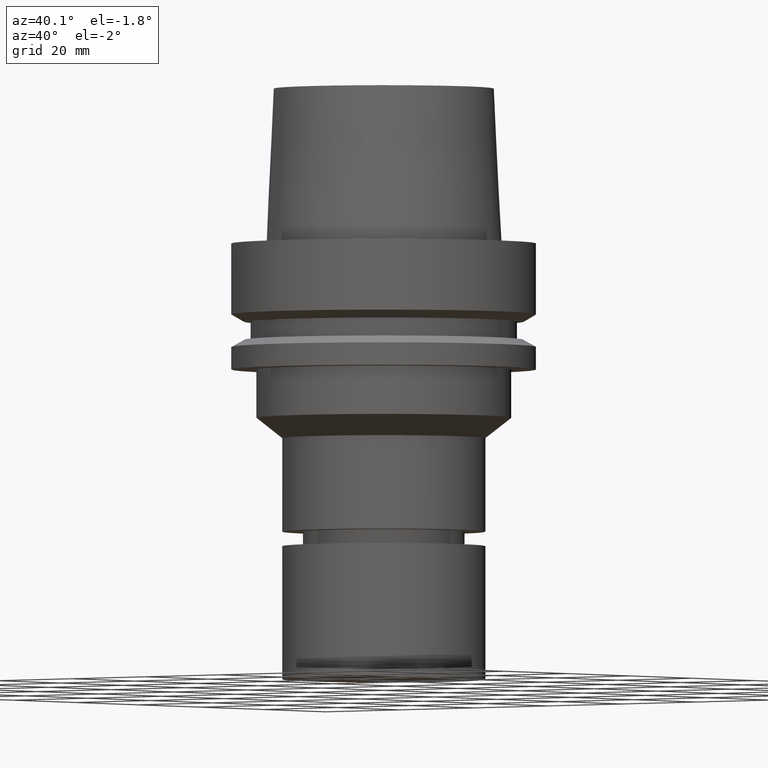
[diagram: clean part render]
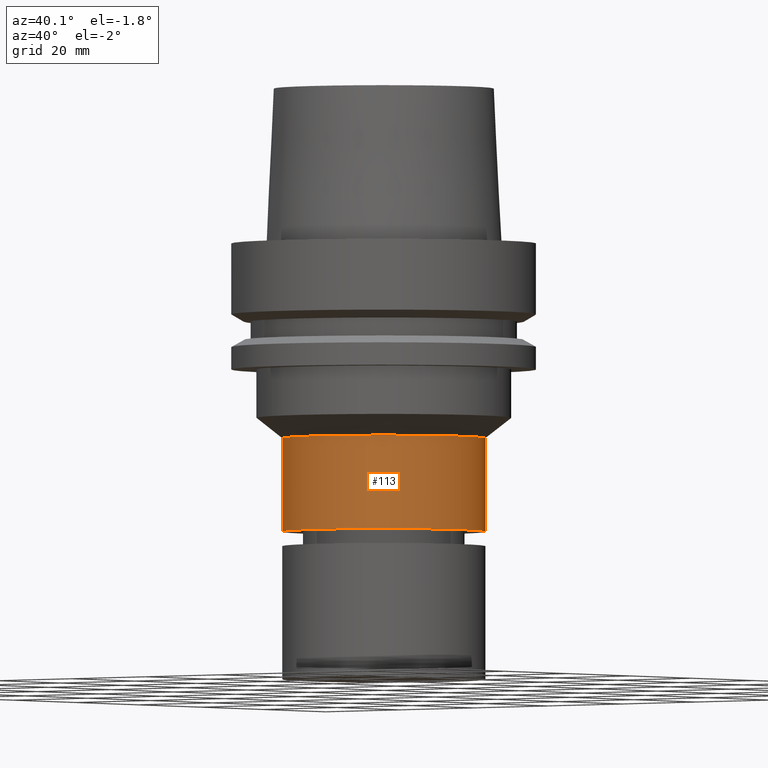
[diagram: same view with one face highlighted and labeled with its STEP entity id]
A machine part, auxiliary view. The second image highlights one B-rep face of the part: STEP entity #113.
In plain terms, the highlighted cylindrical surface (bore or boss wall) has radius 21 mm, axis along (-0, -0, 1).
Its self-contained STEP definition (entity closure, byte-faithful):
#110=EDGE_CURVE('Unnamed[1]',#264,#264,#265,.T.);
#113=ADVANCED_FACE('Unnamed[1]',(#268,#269),#270,.T.);
#171=EDGE_CURVE('Unnamed[1]',#357,#357,#358,.T.);
#264=VERTEX_POINT('',#468);
#265=CIRCLE('',#469,21.0000000000001);
#268=FACE_BOUND('',#473,.T.);
#269=FACE_BOUND('',#474,.T.);
#270=CYLINDRICAL_SURFACE('',#475,21.0000000000001);
#357=VERTEX_POINT('',#582);
#358=CIRCLE('',#583,21.0);
#468=CARTESIAN_POINT('',(3.64332422746337E-015,21.0000000000002,-59.5));
#469=AXIS2_PLACEMENT_3D('',#686,#687,#688);
#473=EDGE_LOOP('',(#690));
#474=EDGE_LOOP('',(#691));
#475=AXIS2_PLACEMENT_3D('',#692,#693,#694);
#582=CARTESIAN_POINT('',(2.46243754655501E-015,21.0,-40.214656965085));
#583=AXIS2_PLACEMENT_3D('',#788,#789,#790);
#686=CARTESIAN_POINT('',(3.64332422746337E-015,7.28664845492674E-015,-59.5));
#687=DIRECTION('',(-6.12323399573677E-017,-1.22464679914735E-016,1.0));
#688=DIRECTION('',(-1.23259516440783E-032,1.0,1.22464679914735E-016));
#690=ORIENTED_EDGE('',*,*,#171,.F.);
#691=ORIENTED_EDGE('',*,*,#110,.T.);
#692=CARTESIAN_POINT('',(3.05288088700919E-015,6.10576177401838E-015,-49.8573284825425));
#693=DIRECTION('',(-6.12323399573677E-017,-1.22464679914735E-016,1.0));
#694=DIRECTION('',(-1.23259516440783E-032,1.0,1.22464679914735E-016));
#788=CARTESIAN_POINT('',(2.46243754655501E-015,4.92487509311001E-015,-40.214656965085));
#789=DIRECTION('',(-6.12323399573677E-017,-1.22464679914735E-016,1.0));
#790=DIRECTION('',(-1.23259516440783E-032,1.0,1.22464679914735E-016));